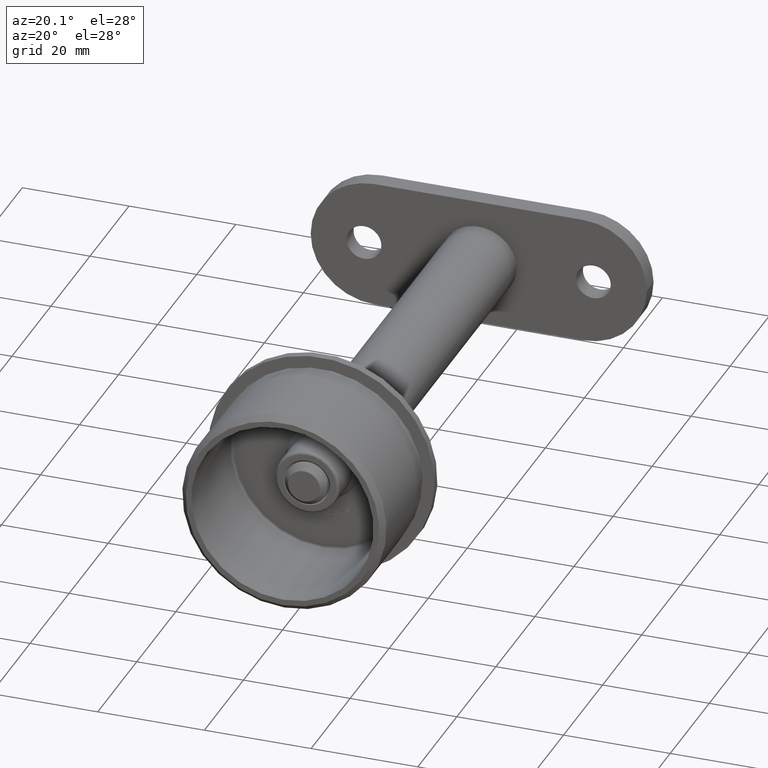
[diagram: clean part render]
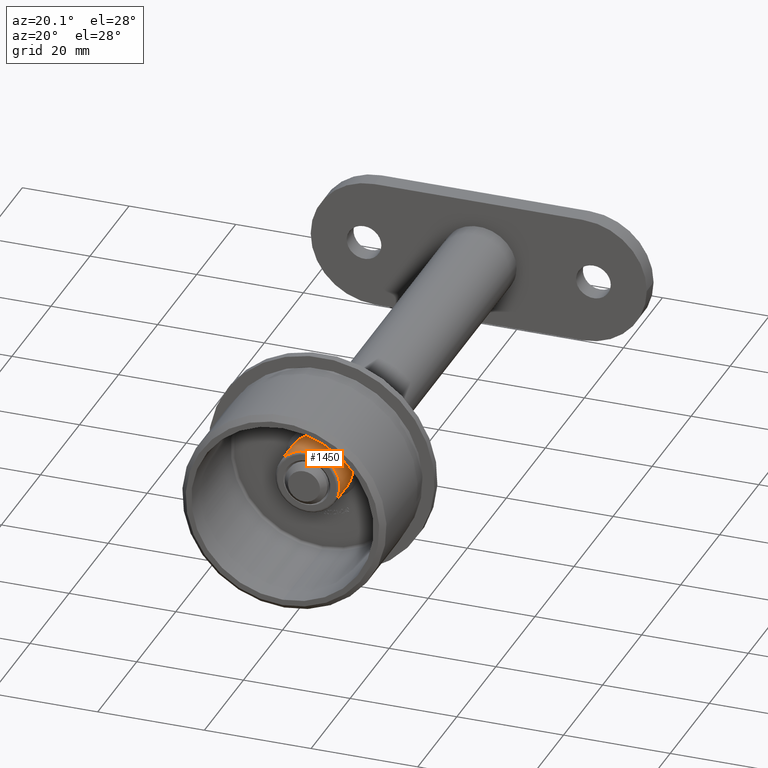
[diagram: same view with one face highlighted and labeled with its STEP entity id]
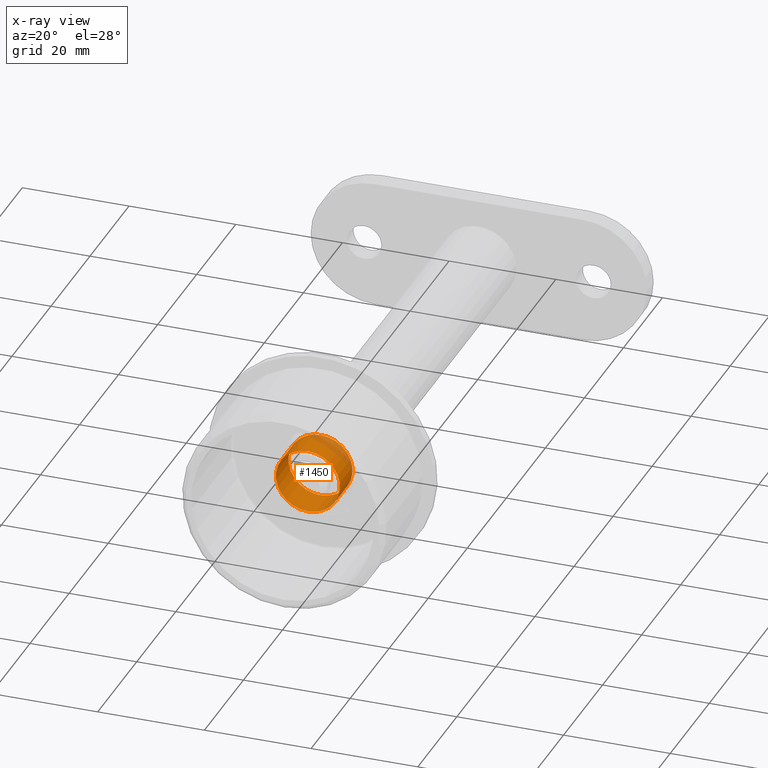
[diagram: x-ray of the same camera — body ghosted, the highlighted face saturated]
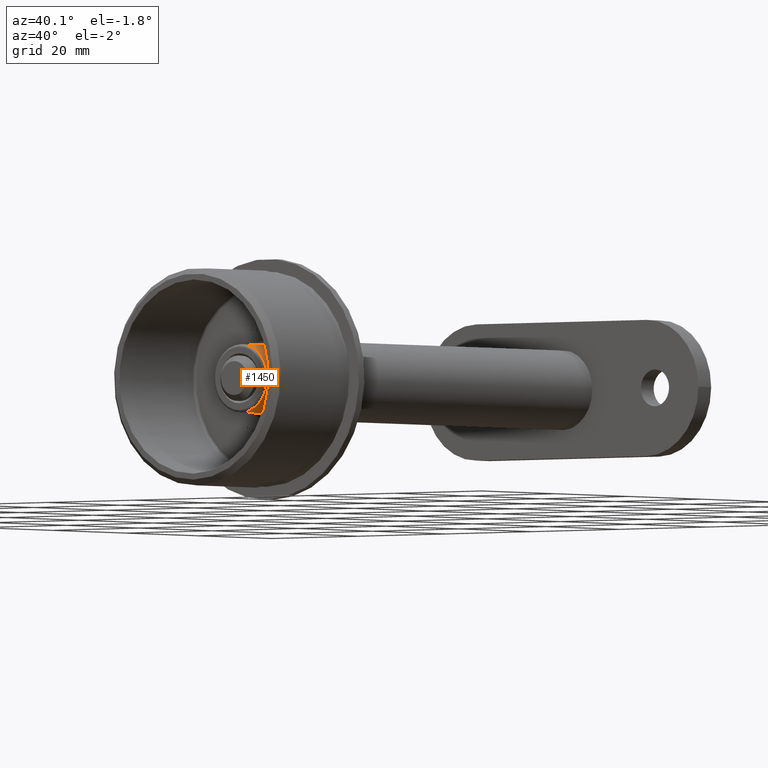
[diagram: same view with one face highlighted and labeled with its STEP entity id]
A machine part, auxiliary view. The second image highlights one B-rep face of the part: STEP entity #1450.
The next image is the same camera in x-ray: the body ghosted, the highlighted face saturated — about 15% of this face is hidden behind the body in this view.
A second angle (auxiliary view) of the same face is appended — the face is thin or edge-on in the first view.
In plain terms, the highlighted cylindrical surface (bore or boss wall) has radius 6 mm, axis along (0, 1, 0).
Its self-contained STEP definition (entity closure, byte-faithful):
#297 = DIRECTION ( 'NONE',  ( -0.000000000000000000, 1.000000000000000000, -0.000000000000000000 ) ) ;
#650 = DIRECTION ( 'NONE',  ( 0.000000000000000000, 1.000000000000000000, 0.000000000000000000 ) ) ;
#1450 = ADVANCED_FACE ( 'NONE', ( #4857, #10333 ), #10767, .T. ) ;
#1627 = CARTESIAN_POINT ( 'NONE',  ( 0.000000000000000000, -16.97056274847714263, 0.000000000000000000 ) ) ;
#1742 = CIRCLE ( 'NONE', #6567, 6.000000000000000888 ) ;
#2292 = VERTEX_POINT ( 'NONE', #12120 ) ;
#3628 = DIRECTION ( 'NONE',  ( 0.000000000000000000, 0.000000000000000000, -1.000000000000000000 ) ) ;
#4208 = CIRCLE ( 'NONE', #12920, 6.000000000000000888 ) ;
#4324 = DIRECTION ( 'NONE',  ( 0.000000000000000000, 0.000000000000000000, -1.000000000000000000 ) ) ;
#4345 = VERTEX_POINT ( 'NONE', #7636 ) ;
#4857 = FACE_OUTER_BOUND ( 'NONE', #17576, .T. ) ;
#6567 = AXIS2_PLACEMENT_3D ( 'NONE', #18065, #650, #3628 ) ;
#7334 = EDGE_LOOP ( 'NONE', ( #16881 ) ) ;
#7636 = CARTESIAN_POINT ( 'NONE',  ( 0.000000000000000000, 19.49999999999996803, -6.000000000000000888 ) ) ;
#10079 = EDGE_CURVE ( 'NONE', #2292, #2292, #1742, .T. ) ;
#10333 = FACE_OUTER_BOUND ( 'NONE', #7334, .T. ) ;
#10729 = ORIENTED_EDGE ( 'NONE', *, *, #12623, .T. ) ;
#10767 = CYLINDRICAL_SURFACE ( 'NONE', #11392, 6.000000000000000888 ) ;
#11392 = AXIS2_PLACEMENT_3D ( 'NONE', #1627, #297, #11763 ) ;
#11763 = DIRECTION ( 'NONE',  ( 0.000000000000000000, 0.000000000000000000, 1.000000000000000000 ) ) ;
#12120 = CARTESIAN_POINT ( 'NONE',  ( 0.000000000000000000, 13.00000000000000178, -6.000000000000000888 ) ) ;
#12623 = EDGE_CURVE ( 'NONE', #4345, #4345, #4208, .T. ) ;
#12920 = AXIS2_PLACEMENT_3D ( 'NONE', #14606, #13033, #4324 ) ;
#13033 = DIRECTION ( 'NONE',  ( -0.000000000000000000, -1.000000000000000000, -0.000000000000000000 ) ) ;
#14606 = CARTESIAN_POINT ( 'NONE',  ( 0.000000000000000000, 19.49999999999996803, 0.000000000000000000 ) ) ;
#16881 = ORIENTED_EDGE ( 'NONE', *, *, #10079, .T. ) ;
#17576 = EDGE_LOOP ( 'NONE', ( #10729 ) ) ;
#18065 = CARTESIAN_POINT ( 'NONE',  ( 0.000000000000000000, 13.00000000000000178, 0.000000000000000000 ) ) ;